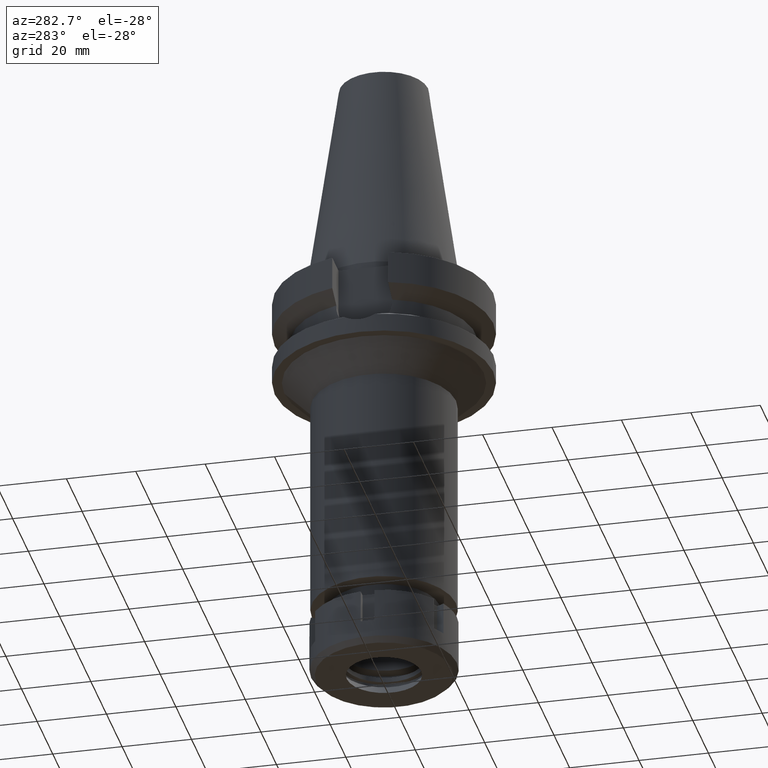
[diagram: clean part render]
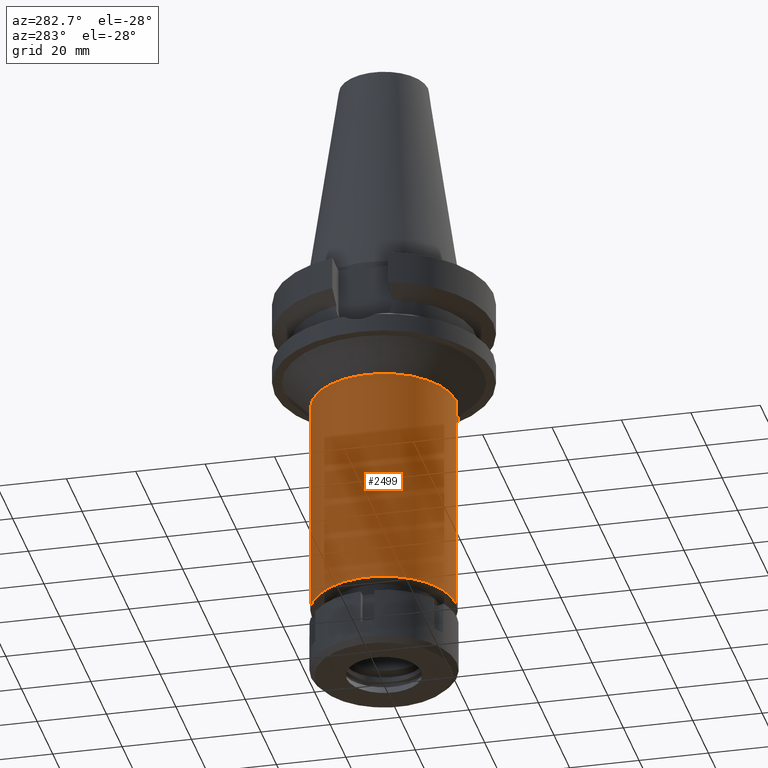
[diagram: same view with one face highlighted and labeled with its STEP entity id]
A machine part, auxiliary view. The second image highlights one B-rep face of the part: STEP entity #2499.
In plain terms, the highlighted cylindrical surface (partial cylindrical patch) has radius 20.75 mm, axis along (0, 0, -1).
Its self-contained STEP definition (entity closure, byte-faithful):
#204 = CARTESIAN_POINT ( 'NONE',  ( 0.0000000000000000000, -20.75000000000000000, -35.00000000000000000 ) ) ;
#506 = CARTESIAN_POINT ( 'NONE',  ( 0.0000000000000000000, 20.75000000000000000, -35.00000000000000000 ) ) ;
#564 = DIRECTION ( 'NONE',  ( 0.0000000000000000000, 0.0000000000000000000, -1.000000000000000000 ) ) ;
#710 = LINE ( 'NONE', #3211, #3340 ) ;
#746 = CARTESIAN_POINT ( 'NONE',  ( 0.0000000000000000000, 2.134191976873999699E-14, 74.26999999999999602 ) ) ;
#815 = AXIS2_PLACEMENT_3D ( 'NONE', #871, #564, #1706 ) ;
#817 = VECTOR ( 'NONE', #2132, 1000.000000000000000 ) ;
#871 = CARTESIAN_POINT ( 'NONE',  ( 0.0000000000000000000, 0.0000000000000000000, -35.00000000000000000 ) ) ;
#912 = CARTESIAN_POINT ( 'NONE',  ( 0.0000000000000000000, 2.134191976873999699E-14, -99.50000000000000000 ) ) ;
#958 = EDGE_CURVE ( 'NONE', #1548, #1978, #3391, .T. ) ;
#1024 = DIRECTION ( 'NONE',  ( 0.0000000000000000000, -1.000000000000000000, 0.0000000000000000000 ) ) ;
#1101 = AXIS2_PLACEMENT_3D ( 'NONE', #912, #3143, #1177 ) ;
#1109 = CIRCLE ( 'NONE', #815, 20.75000000000000000 ) ;
#1177 = DIRECTION ( 'NONE',  ( 0.0000000000000000000, 1.000000000000000000, 0.0000000000000000000 ) ) ;
#1260 = DIRECTION ( 'NONE',  ( 0.0000000000000000000, 0.0000000000000000000, -1.000000000000000000 ) ) ;
#1309 = VERTEX_POINT ( 'NONE', #2005 ) ;
#1548 = VERTEX_POINT ( 'NONE', #1808 ) ;
#1642 = EDGE_CURVE ( 'NONE', #3266, #1548, #710, .T. ) ;
#1706 = DIRECTION ( 'NONE',  ( 0.0000000000000000000, -1.000000000000000000, 0.0000000000000000000 ) ) ;
#1808 = CARTESIAN_POINT ( 'NONE',  ( 0.0000000000000000000, 20.75000000000000000, -99.50000000000000000 ) ) ;
#1880 = DIRECTION ( 'NONE',  ( 0.0000000000000000000, 0.0000000000000000000, -1.000000000000000000 ) ) ;
#1885 = ORIENTED_EDGE ( 'NONE', *, *, #2213, .F. ) ;
#1888 = ORIENTED_EDGE ( 'NONE', *, *, #2944, .T. ) ;
#1906 = ORIENTED_EDGE ( 'NONE', *, *, #1642, .T. ) ;
#1942 = EDGE_LOOP ( 'NONE', ( #3364, #1885, #1888, #1906 ) ) ;
#1978 = VERTEX_POINT ( 'NONE', #2631 ) ;
#2005 = CARTESIAN_POINT ( 'NONE',  ( 0.0000000000000000000, -20.75000000000000000, -35.00000000000000000 ) ) ;
#2132 = DIRECTION ( 'NONE',  ( 0.0000000000000000000, 0.0000000000000000000, -1.000000000000000000 ) ) ;
#2213 = EDGE_CURVE ( 'NONE', #1309, #1978, #2460, .T. ) ;
#2460 = LINE ( 'NONE', #204, #817 ) ;
#2499 = ADVANCED_FACE ( 'NONE', ( #2962 ), #3166, .T. ) ;
#2631 = CARTESIAN_POINT ( 'NONE',  ( 0.0000000000000000000, -20.75000000000000000, -99.50000000000000000 ) ) ;
#2937 = AXIS2_PLACEMENT_3D ( 'NONE', #746, #1880, #1024 ) ;
#2944 = EDGE_CURVE ( 'NONE', #1309, #3266, #1109, .T. ) ;
#2962 = FACE_OUTER_BOUND ( 'NONE', #1942, .T. ) ;
#3143 = DIRECTION ( 'NONE',  ( 0.0000000000000000000, 0.0000000000000000000, 1.000000000000000000 ) ) ;
#3166 = CYLINDRICAL_SURFACE ( 'NONE', #2937, 20.75000000000000000 ) ;
#3211 = CARTESIAN_POINT ( 'NONE',  ( 0.0000000000000000000, 20.75000000000000000, -35.00000000000000000 ) ) ;
#3266 = VERTEX_POINT ( 'NONE', #506 ) ;
#3340 = VECTOR ( 'NONE', #1260, 1000.000000000000000 ) ;
#3364 = ORIENTED_EDGE ( 'NONE', *, *, #958, .T. ) ;
#3391 = CIRCLE ( 'NONE', #1101, 20.75000000000000000 ) ;